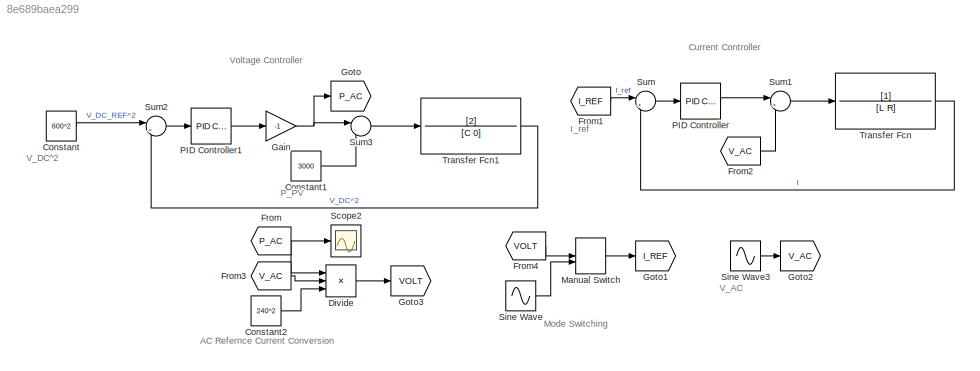
MODEL slx_8e689baea299
KIND model
CONFIG AbsTol = auto
CONFIG EnableMultiTasking = off
CONFIG FixedStep = auto
CONFIG MaxStep = auto
CONFIG MinStep = auto
CONFIG RelTol = 1e-3
CONFIG SampleTimeConstraint = Unconstrained
CONFIG SolverName = VariableStepAuto
CONFIG StartTime = 0.0
CONFIG StopTime = 1
BLOCK [Constant] Constant
  Value = 600^2
BLOCK [Constant] Constant1
  Value = 3000
BLOCK [Constant] Constant2
  Value = 240^2
BLOCK [Product] Divide
  Inputs = **/
BLOCK [From] From
  GotoTag = P_AC
BLOCK [From] From1
  GotoTag = I_REF
BLOCK [From] From2
  GotoTag = V_AC
BLOCK [From] From3
  GotoTag = V_AC
BLOCK [From] From4
  GotoTag = VOLT
BLOCK [Gain] Gain
  Gain = -1
BLOCK [Goto] Goto
  GotoTag = P_AC
BLOCK [Goto] Goto1
  GotoTag = I_REF
BLOCK [Goto] Goto2
  GotoTag = V_AC
BLOCK [Goto] Goto3
  GotoTag = VOLT
BLOCK [ManualSwitch] Manual Switch
  CurrentSetting = 0
BLOCK [Reference] PID Controller  REF=slpidlib/PID Controller
  LibrarySourceBlock = simulink/Continuous/PID Controller
  SourceBlock = slpidlib/PID Controller
  SourceType = PID 1dof
BLOCK [Reference] PID Controller1  REF=slpidlib/PID Controller
  LibrarySourceBlock = simulink/Continuous/PID Controller
  SourceBlock = slpidlib/PID Controller
  SourceType = PID 1dof
BLOCK [Scope] Scope2
  ActiveDisplayYMaximum = 3375.1597749605244
  ActiveDisplayYMinimum = -376.43797464471982
  DataLoggingVariableName = ScopeData2
  Floating = off
  GraphicalSettings = {"Style":{"BackgroundColor":[0.12941176470588237,0.12941176470588237,0.12941176470588237],"AxesColor":[0.07058823529411765,0.07058823529411765,0.07058823529411765],"LabelsColor":[0.8509803921568627,0.8509803921568627,0.8509803921568627],"PreserveColors":false,"Visible":[true],"LineStyle":["-"],"LineWidth":[1.5],"BarWidth":[0.9],"LineColor":["auto"],"LineFaceAlpha":[1],"LineEdgeAlpha":[1],"Marker":...<+1991ch>
  MultipleDisplayCache = [{"MaxYLimMag":3375.1597749605244,"MaxYLimReal":3375.1597749605244,"MinYLimMag":0,"MinYLimReal":-376.43797464471982,"PlotAsMagnitudePhase":false,"ShowGrid":true,"ShowLegend":false,"Title":"%<SignalLabel>","YLabel":""}]
  NumInputPorts = 1
  ScopeFrameLocation = window
  WasSavedAsWebScope = on
  WindowPosition = [1.000000,49.000000,2560.000000,1369.000000,]
BLOCK [Sin] Sine Wave
  Amplitude = 12.5*sqrt(2)
  Frequency = 50*2*pi
  SampleTime = 0
BLOCK [Sin] Sine Wave3
  Amplitude = 240*sqrt(2)
  Frequency = 50*2*pi
  SampleTime = 0
BLOCK [Sum] Sum
  Inputs = |+-
BLOCK [Sum] Sum1
  Inputs = |+-
BLOCK [Sum] Sum2
  Inputs = |+-
BLOCK [Sum] Sum3
  Inputs = |-+
BLOCK [TransferFcn] Transfer Fcn
  Denominator = [L R]
BLOCK [TransferFcn] Transfer Fcn1
  Denominator = [C 0]
  Numerator = [2]
ANNOTATION (root): AC Refernce Current Conversion
ANNOTATION (root): Current Controller
ANNOTATION (root): I_ref
ANNOTATION (root): Mode Switching
ANNOTATION (root): P_PV
ANNOTATION (root): V_AC
ANNOTATION (root): V_DC^2
ANNOTATION (root): Voltage Controller
LINE Constant1:1 -> Sum3:2
LINE Constant2:1 -> Divide:3
LINE Constant:1 -> Sum2:1
LINE Divide:1 -> Goto3:1
LINE From1:1 -> Sum:1
LINE From2:1 -> Sum1:2
LINE From3:1 -> Divide:2
LINE From4:1 -> Manual Switch:1
NET From:1 -> Divide:1, Scope2:1
NET Gain:1 -> Goto:1, Sum3:1
LINE Manual Switch:1 -> Goto1:1
LINE PID Controller1:1 -> Gain:1
LINE PID Controller:1 -> Sum1:1
LINE Sine Wave3:1 -> Goto2:1
LINE Sine Wave:1 -> Manual Switch:2
LINE Sum1:1 -> Transfer Fcn:1
LINE Sum2:1 -> PID Controller1:1
LINE Sum3:1 -> Transfer Fcn1:1
LINE Sum:1 -> PID Controller:1
LINE Transfer Fcn1:1 -> Sum2:2
LINE Transfer Fcn:1 -> Sum:2
note: NET lines group one-source signal fan-out (src -> all destinations, sorted); 1:1 wires keep LINE
